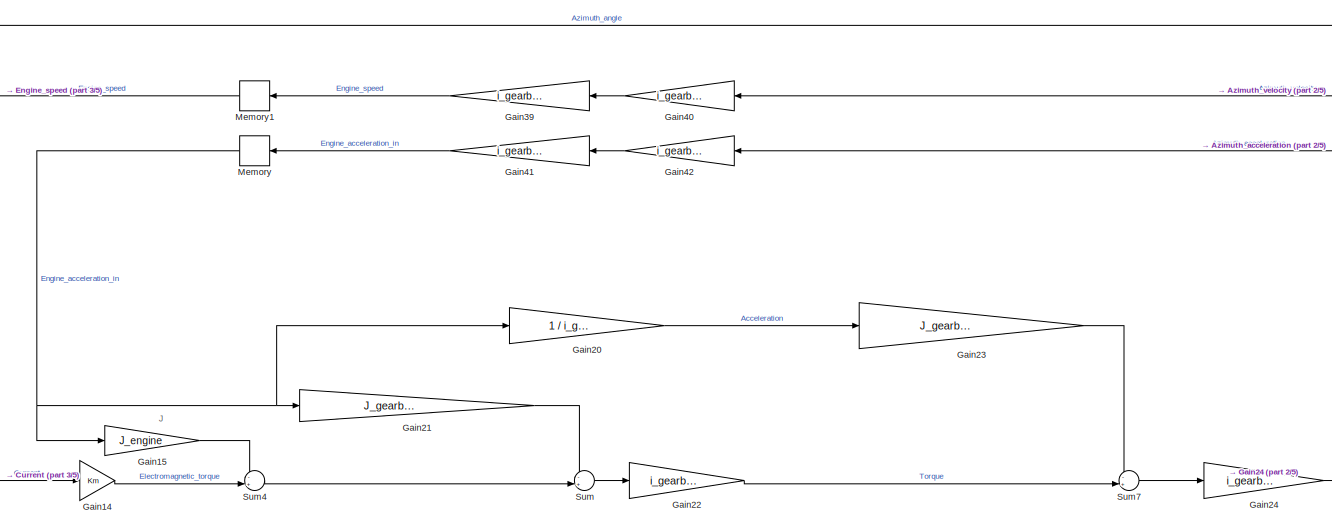
[diagram: root canvas - part 1/5, top center region]
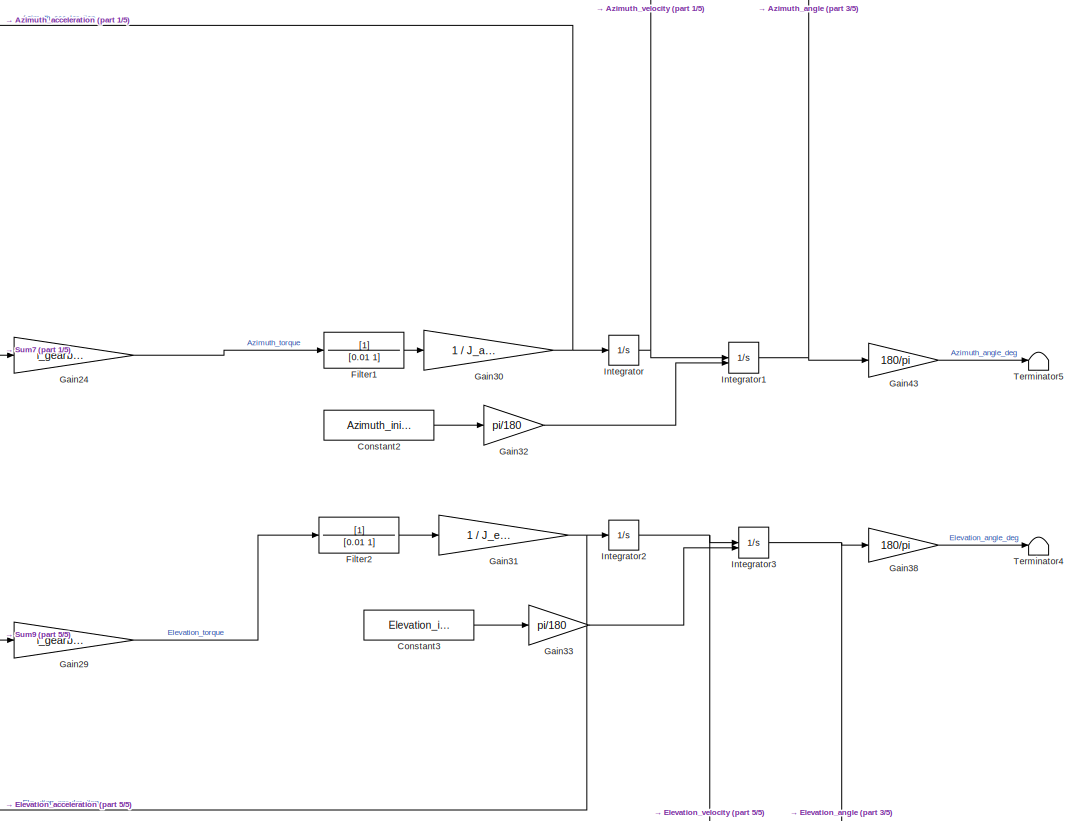
[diagram: root canvas - part 2/5, right side, full height]
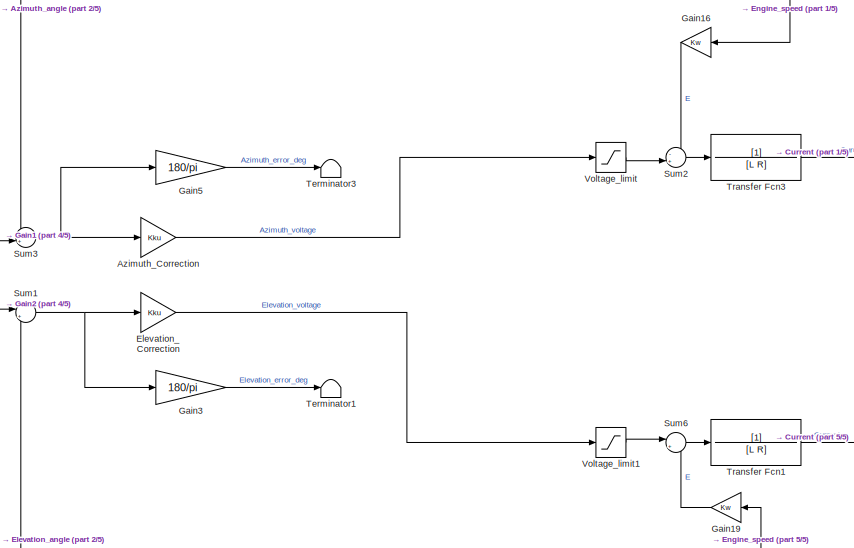
[diagram: root canvas - part 3/5, central region]
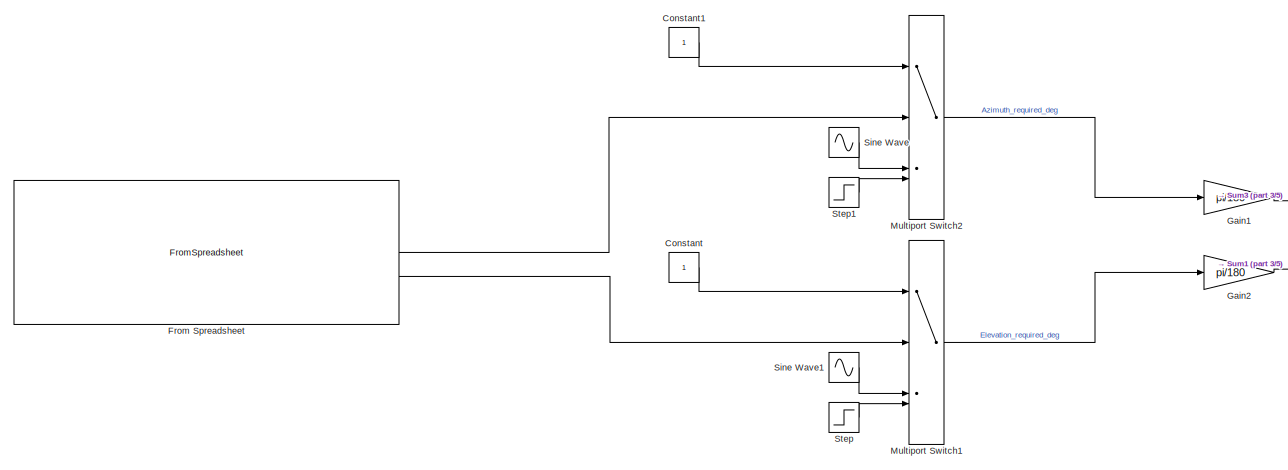
[diagram: root canvas - part 4/5, middle left region]
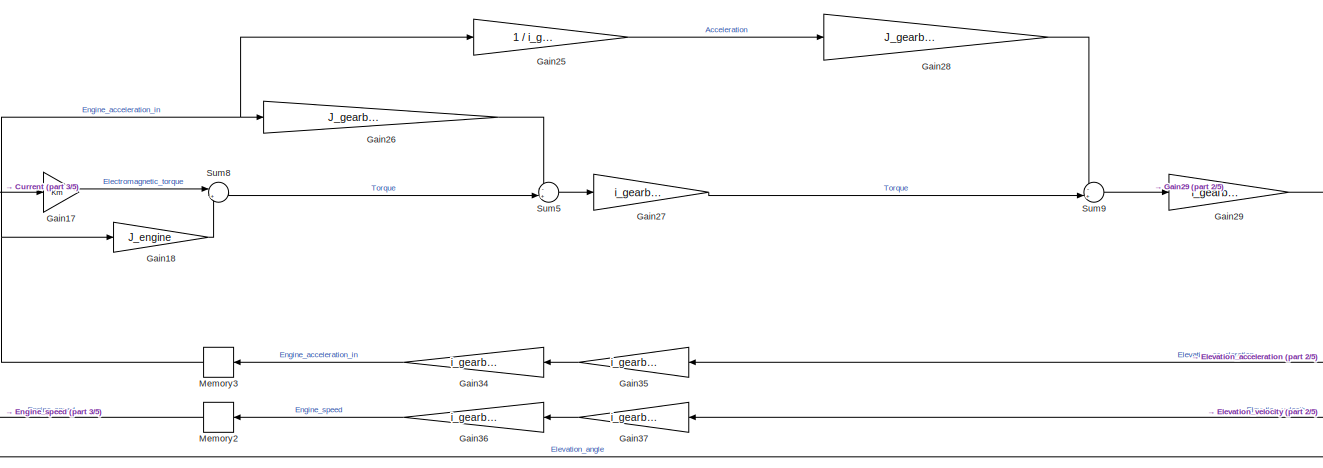
[diagram: root canvas - part 5/5, bottom center region]
MODEL slx_c20012774199
KIND model
CONFIG AbsTol = auto
CONFIG EnableMultiTasking = off
CONFIG FixedStep = auto
CONFIG MaxStep = auto
CONFIG MinStep = auto
CONFIG RelTol = 1e-3
CONFIG SampleTimeConstraint = Unconstrained
CONFIG SolverName = ode23tb
CONFIG StartTime = 0.0
CONFIG StopTime = 630
BLOCK [Gain] Azimuth_Correction
  Gain = Kku
BLOCK [Constant] Constant
BLOCK [Constant] Constant1
BLOCK [Constant] Constant2
  Value = Azimuth_initial_angle
BLOCK [Constant] Constant3
  Value = Elevation_initial_angle
BLOCK [Gain] Elevation_Correction
  Gain = Kku
BLOCK [TransferFcn] Filter1
  Denominator = [0.01 1]
BLOCK [TransferFcn] Filter2
  Denominator = [0.01 1]
BLOCK [FromSpreadsheet] From Spreadsheet
  FileName = .\data\DemoSatelliteData.xlsx
  SheetName = International_Space_Station
BLOCK [Gain] Gain1
  Gain = pi/180
BLOCK [Gain] Gain14
  Gain = Km
BLOCK [Gain] Gain15
  Gain = J_engine
BLOCK [Gain] Gain16
  Gain = Kw
  NameLocation = top
BLOCK [Gain] Gain17
  Gain = Km
BLOCK [Gain] Gain18
  Gain = J_engine
BLOCK [Gain] Gain19
  Gain = Kw
  NameLocation = top
BLOCK [Gain] Gain2
  Gain = pi/180
BLOCK [Gain] Gain20
  Gain = 1 / i_gearbox_1
BLOCK [Gain] Gain21
  Gain = J_gearbox_1 / i_gearbox_1^2
  NameLocation = right
BLOCK [Gain] Gain22
  Gain = i_gearbox_1
BLOCK [Gain] Gain23
  Gain = J_gearbox_2 / i_gearbox_2^2
BLOCK [Gain] Gain24
  Gain = i_gearbox_2
BLOCK [Gain] Gain25
  Gain = 1 / i_gearbox_1
BLOCK [Gain] Gain26
  Gain = J_gearbox_1 / i_gearbox_1^2
  NameLocation = right
BLOCK [Gain] Gain27
  Gain = i_gearbox_1
BLOCK [Gain] Gain28
  Gain = J_gearbox_2 / i_gearbox_2^2
BLOCK [Gain] Gain29
  Gain = i_gearbox_2
BLOCK [Gain] Gain3
  Gain = 180/pi
BLOCK [Gain] Gain30
  Gain = 1 / J_azimuth
BLOCK [Gain] Gain31
  Gain = 1 / J_elevation
BLOCK [Gain] Gain32
  Gain = pi/180
BLOCK [Gain] Gain33
  Gain = pi/180
BLOCK [Gain] Gain34
  Gain = i_gearbox_1
  NameLocation = top
BLOCK [Gain] Gain35
  Gain = i_gearbox_2
  NameLocation = top
BLOCK [Gain] Gain36
  Gain = i_gearbox_1
  NameLocation = top
BLOCK [Gain] Gain37
  Gain = i_gearbox_2
  NameLocation = top
BLOCK [Gain] Gain38
  Gain = 180/pi
BLOCK [Gain] Gain39
  Gain = i_gearbox_1
  NameLocation = top
BLOCK [Gain] Gain40
  Gain = i_gearbox_2
  NameLocation = top
BLOCK [Gain] Gain41
  Gain = i_gearbox_1
  NameLocation = top
BLOCK [Gain] Gain42
  Gain = i_gearbox_2
  NameLocation = top
BLOCK [Gain] Gain43
  Gain = 180/pi
BLOCK [Gain] Gain5
  Gain = 180/pi
BLOCK [Integrator] Integrator
BLOCK [Integrator] Integrator1
  InitialConditionSource = external
BLOCK [Integrator] Integrator2
BLOCK [Integrator] Integrator3
  InitialConditionSource = external
BLOCK [Memory] Memory
BLOCK [Memory] Memory1
BLOCK [Memory] Memory2
BLOCK [Memory] Memory3
BLOCK [MultiPortSwitch] Multiport Switch1
  InputSameDT = off
  SaturateOnIntegerOverflow = off
BLOCK [MultiPortSwitch] Multiport Switch2
  InputSameDT = off
  SaturateOnIntegerOverflow = off
BLOCK [Sin] Sine Wave
  Amplitude = 6
  Phase = pi/2
  SampleTime = 0
BLOCK [Sin] Sine Wave1
  Amplitude = 6
  SampleTime = 0
BLOCK [Step] Step
  SampleTime = 0
BLOCK [Step] Step1
  SampleTime = 0
BLOCK [Sum] Sum
  Inputs = -+|
BLOCK [Sum] Sum1
  Inputs = |+-
BLOCK [Sum] Sum2
  Inputs = -+|
BLOCK [Sum] Sum3
  Inputs = -+|
BLOCK [Sum] Sum4
  Inputs = -+|
BLOCK [Sum] Sum5
  Inputs = -+|
BLOCK [Sum] Sum6
  Inputs = |+-
BLOCK [Sum] Sum7
  Inputs = -+|
BLOCK [Sum] Sum8
  Inputs = |+-
BLOCK [Sum] Sum9
  Inputs = -+|
BLOCK [Terminator] Terminator1
BLOCK [Terminator] Terminator3
BLOCK [Terminator] Terminator4
BLOCK [Terminator] Terminator5
BLOCK [TransferFcn] Transfer Fcn1
  Denominator = [L R]
BLOCK [TransferFcn] Transfer Fcn3
  Denominator = [L R]
BLOCK [Saturate] Voltage_limit
  LowerLimit = -10.8
  NameLocation = top
  UpperLimit = 10.8
BLOCK [Saturate] Voltage_limit1
  LowerLimit = -10.8
  NameLocation = top
  UpperLimit = 10.8
ANNOTATION (root): J
LINE Azimuth_Correction:1 -> Voltage_limit:1
LINE Constant1:1 -> Multiport Switch2:1
LINE Constant2:1 -> Gain32:1
LINE Constant3:1 -> Gain33:1
LINE Constant:1 -> Multiport Switch1:1
LINE Elevation_Correction:1 -> Voltage_limit1:1
LINE Filter1:1 -> Gain30:1
LINE Filter2:1 -> Gain31:1
LINE From Spreadsheet:1 -> Multiport Switch2:2
LINE From Spreadsheet:2 -> Multiport Switch1:2
LINE Gain14:1 -> Sum4:2
LINE Gain15:1 -> Sum4:1
LINE Gain16:1 -> Sum2:1
LINE Gain17:1 -> Sum8:1
LINE Gain18:1 -> Sum8:2
LINE Gain19:1 -> Sum6:2
LINE Gain1:1 -> Sum3:2
LINE Gain20:1 -> Gain23:1
LINE Gain21:1 -> Sum:1
LINE Gain22:1 -> Sum7:2
LINE Gain23:1 -> Sum7:1
LINE Gain24:1 -> Filter1:1
LINE Gain25:1 -> Gain28:1
LINE Gain26:1 -> Sum5:1
LINE Gain27:1 -> Sum9:2
LINE Gain28:1 -> Sum9:1
LINE Gain29:1 -> Filter2:1
LINE Gain2:1 -> Sum1:1
NET Gain30:1 -> Gain42:1, Integrator:1
NET Gain31:1 -> Gain35:1, Integrator2:1
LINE Gain32:1 -> Integrator1:2
LINE Gain33:1 -> Integrator3:2
LINE Gain34:1 -> Memory3:1
LINE Gain35:1 -> Gain34:1
LINE Gain36:1 -> Memory2:1
LINE Gain37:1 -> Gain36:1
LINE Gain38:1 -> Terminator4:1
LINE Gain39:1 -> Memory1:1
LINE Gain3:1 -> Terminator1:1
LINE Gain40:1 -> Gain39:1
LINE Gain41:1 -> Memory:1
LINE Gain42:1 -> Gain41:1
LINE Gain43:1 -> Terminator5:1
LINE Gain5:1 -> Terminator3:1
NET Integrator1:1 -> Gain43:1, Sum3:1
NET Integrator2:1 -> Gain37:1, Integrator3:1
NET Integrator3:1 -> Gain38:1, Sum1:2
NET Integrator:1 -> Gain40:1, Integrator1:1
LINE Memory1:1 -> Gain16:1
LINE Memory2:1 -> Gain19:1
NET Memory3:1 -> Gain18:1, Gain25:1, Gain26:1
NET Memory:1 -> Gain15:1, Gain20:1, Gain21:1
LINE Multiport Switch1:1 -> Gain2:1
LINE Multiport Switch2:1 -> Gain1:1
LINE Sine Wave1:1 -> Multiport Switch1:3
LINE Sine Wave:1 -> Multiport Switch2:3
LINE Step1:1 -> Multiport Switch2:4
LINE Step:1 -> Multiport Switch1:4
NET Sum1:1 -> Elevation_Correction:1, Gain3:1
LINE Sum2:1 -> Transfer Fcn3:1
NET Sum3:1 -> Azimuth_Correction:1, Gain5:1
LINE Sum4:1 -> Sum:2
LINE Sum5:1 -> Gain27:1
LINE Sum6:1 -> Transfer Fcn1:1
LINE Sum7:1 -> Gain24:1
LINE Sum8:1 -> Sum5:2
LINE Sum9:1 -> Gain29:1
LINE Sum:1 -> Gain22:1
LINE Transfer Fcn1:1 -> Gain17:1
LINE Transfer Fcn3:1 -> Gain14:1
LINE Voltage_limit1:1 -> Sum6:1
LINE Voltage_limit:1 -> Sum2:2
note: NET lines group one-source signal fan-out (src -> all destinations, sorted); 1:1 wires keep LINE
